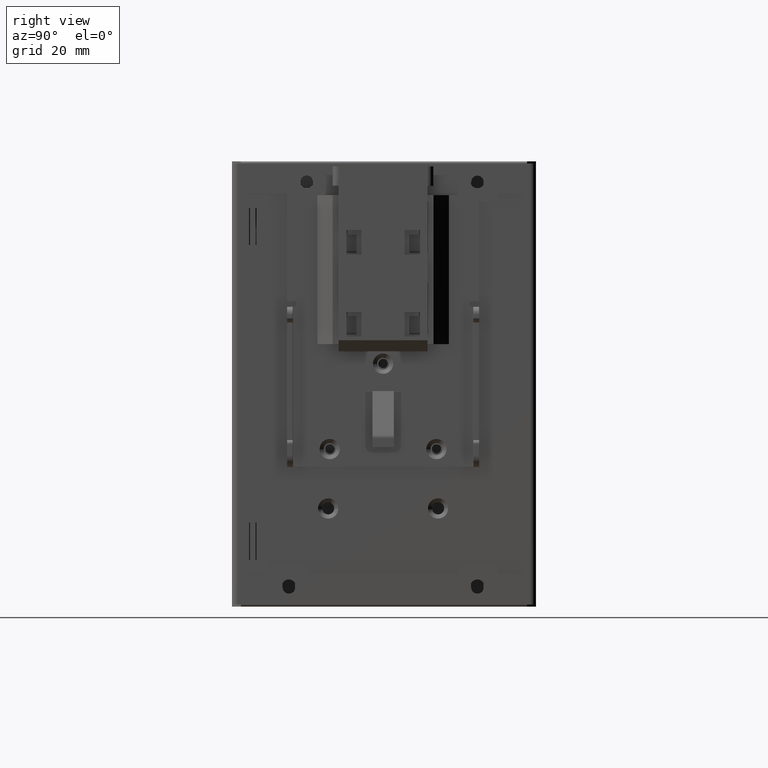
[diagram: clean part render]
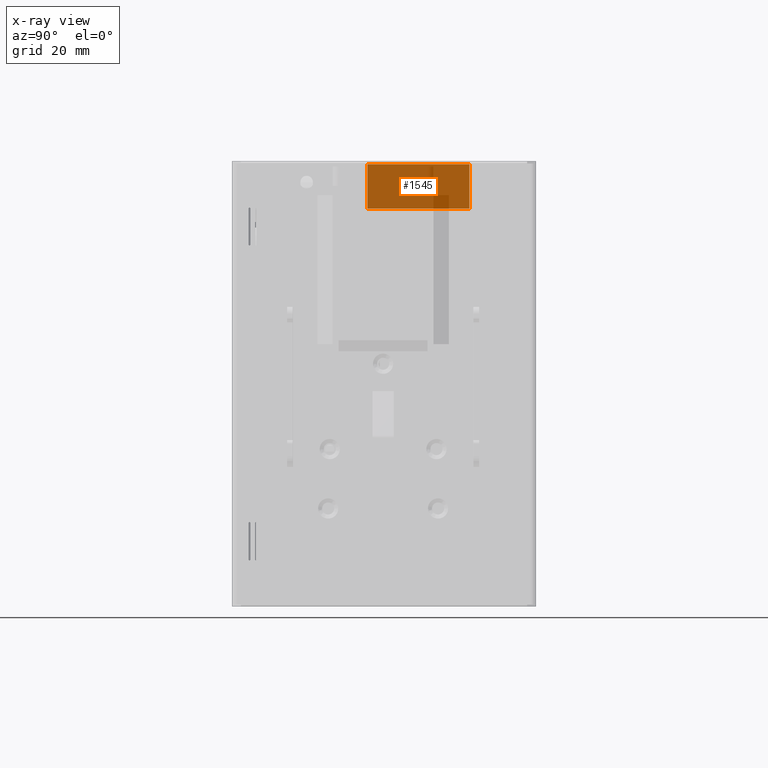
[diagram: x-ray — body ghosted, one internal face saturated and labeled with its STEP entity id]
A machine part, right view, then the same camera in x-ray: the body is ghosted and one INTERNAL B-rep face — a face not visible from any outside direction — is saturated and labeled: STEP entity #1545.
In plain terms, the highlighted planar face has unit normal (-1, 0, 0).
Its self-contained STEP definition (entity closure, byte-faithful):
#232=CARTESIAN_POINT('',(13.302958000290603,68.411136999812811,-48.889999999494407));
#233=VERTEX_POINT('',#232);
#240=CARTESIAN_POINT('',(13.302958000290603,39.711136999792203,-48.889999999494407));
#241=VERTEX_POINT('',#240);
#242=CARTESIAN_POINT('',(13.302958000290603,39.711136999792203,-48.889999999494407));
#243=DIRECTION('',(0.0,1.0,0.0));
#244=VECTOR('',#243,28.700000000020609);
#245=LINE('',#242,#244);
#246=EDGE_CURVE('',#241,#233,#245,.T.);
#495=CARTESIAN_POINT('',(13.302958000290603,39.711136999792203,-36.389999999544401));
#496=VERTEX_POINT('',#495);
#503=CARTESIAN_POINT('',(13.302958000290603,68.411136999812811,-36.389999999544401));
#504=VERTEX_POINT('',#503);
#505=CARTESIAN_POINT('',(13.302958000290603,68.411136999812811,-36.389999999544401));
#506=DIRECTION('',(0.0,-1.0,0.0));
#507=VECTOR('',#506,28.700000000020609);
#508=LINE('',#505,#507);
#509=EDGE_CURVE('',#504,#496,#508,.T.);
#804=CARTESIAN_POINT('',(13.302958000290603,68.411136999812811,-36.389999999544401));
#805=DIRECTION('',(0.0,0.0,-1.0));
#806=VECTOR('',#805,12.499999999950006);
#807=LINE('',#804,#806);
#808=EDGE_CURVE('',#504,#233,#807,.T.);
#964=CARTESIAN_POINT('',(13.302958000290603,39.711136999792203,-36.389999999544401));
#965=DIRECTION('',(0.0,0.0,-1.0));
#966=VECTOR('',#965,12.499999999950006);
#967=LINE('',#964,#966);
#968=EDGE_CURVE('',#496,#241,#967,.T.);
#1534=CARTESIAN_POINT('',(13.302958000290603,20.908786421837206,-41.002512650491198));
#1535=DIRECTION('',(-1.0,0.0,0.0));
#1536=DIRECTION('',(0.0,0.0,1.0));
#1537=AXIS2_PLACEMENT_3D('',#1534,#1535,#1536);
#1538=PLANE('',#1537);
#1539=ORIENTED_EDGE('',*,*,#968,.T.);
#1540=ORIENTED_EDGE('',*,*,#246,.T.);
#1541=ORIENTED_EDGE('',*,*,#808,.F.);
#1542=ORIENTED_EDGE('',*,*,#509,.T.);
#1543=EDGE_LOOP('',(#1539,#1540,#1541,#1542));
#1544=FACE_OUTER_BOUND('',#1543,.T.);
#1545=ADVANCED_FACE('',(#1544),#1538,.F.);